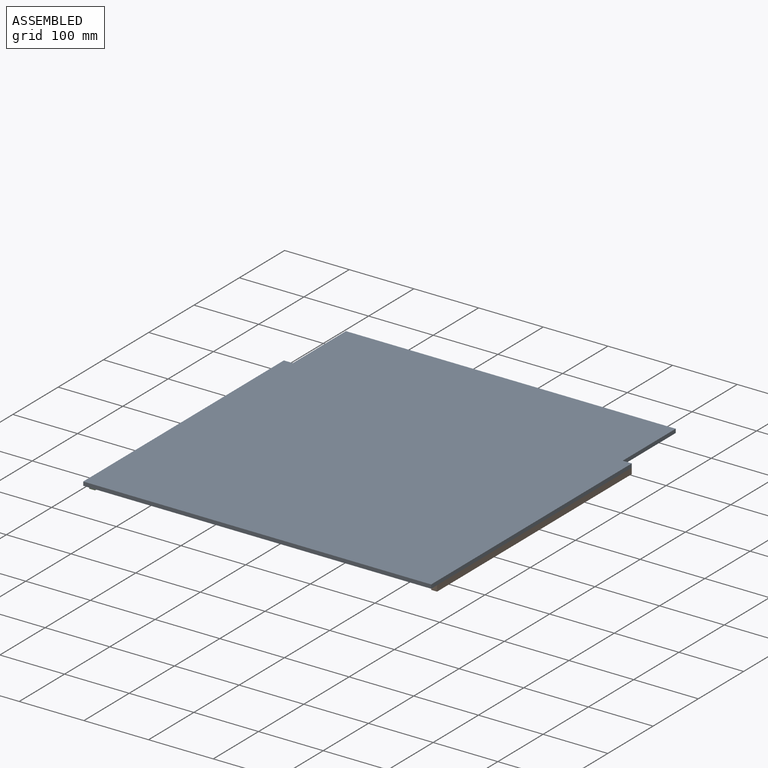
[diagram: assembled view]
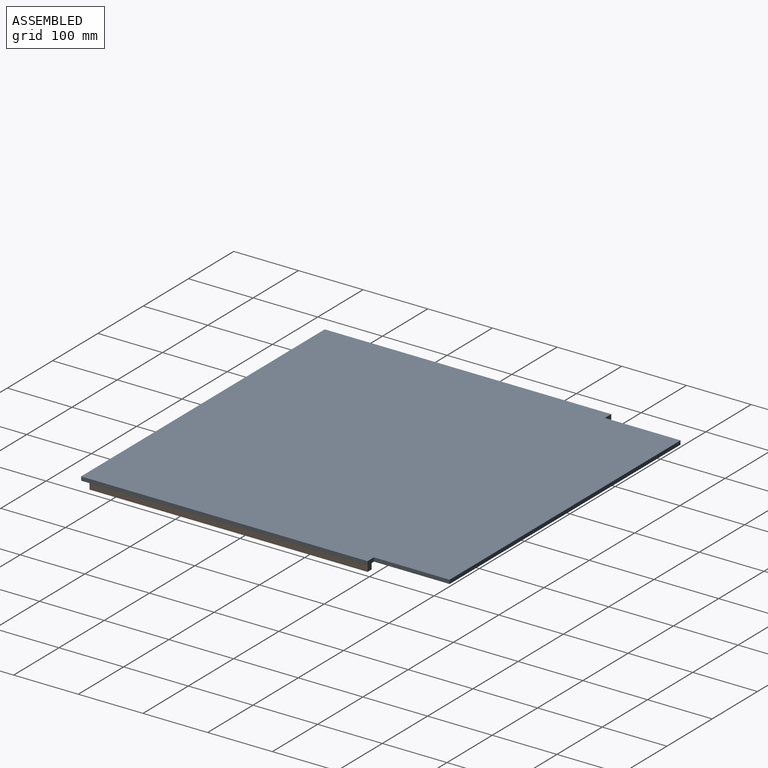
[diagram: assembled view, second angle]
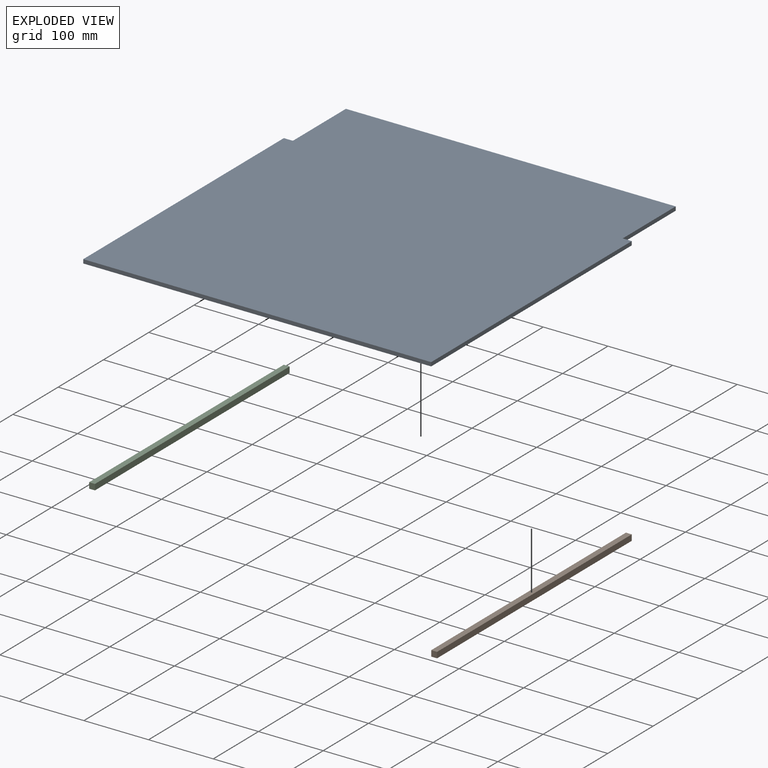
[diagram: exploded view]
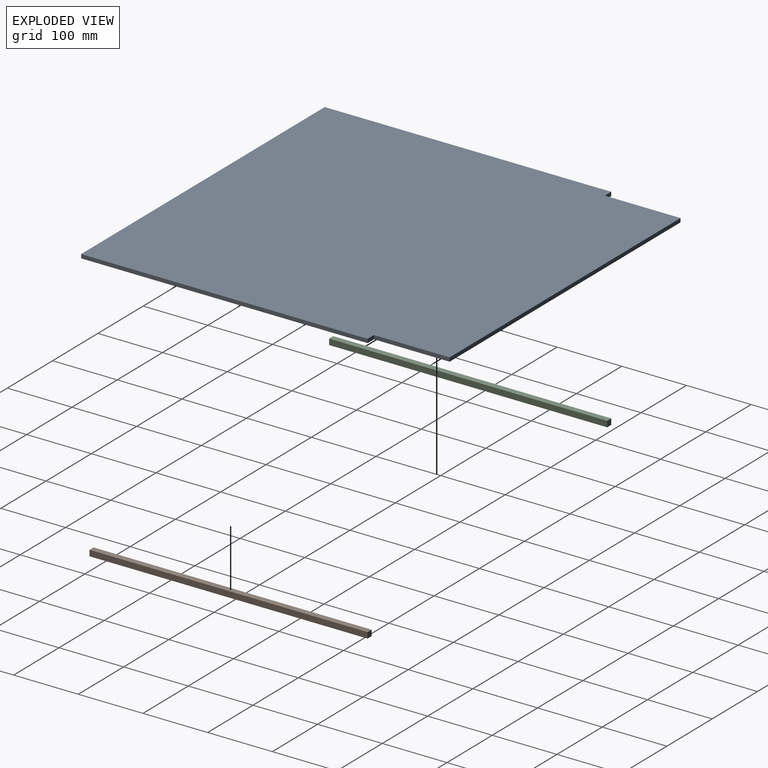
[diagram: exploded view, second angle]
ASSEMBLY  parts=3 mates=2
PART A: 10 faces, bbox 538x560x6 mm
  f0: plane 443x6mm, normal (-1,0,0), area 2658mm2, adj f1,f7,f8,f9
  f1: plane 538x6mm, normal (0,-1,0), area 3228mm2, adj f0,f2,f8,f9
  f2: plane 443x6mm, normal (1,0,0), area 2658mm2, adj f1,f3,f8,f9
  f3: plane 14x6mm, normal (0,1,0), area 84mm2, adj f2,f4,f8,f9
  f4: plane 117x6mm, normal (1,0,0), area 702mm2, adj f3,f5,f8,f9
  f5: plane 510x6mm, normal (0,1,0), area 3060mm2, adj f4,f6,f8,f9
  f6: plane 117x6mm, normal (-1,0,0), area 702mm2, adj f5,f7,f8,f9
  f7: plane 14x6mm, normal (0,1,0), area 84mm2, adj f0,f6,f8,f9
  f8: plane 560x538mm, normal (0,0,1), area 298004mm2, adj f0,f1,f2,f3,f4,f5,f6,f7
  f9: plane 560x538mm, normal (0,0,-1), area 298004mm2, adj f0,f1,f2,f3,f4,f5,f6,f7
PART B: 6 faces, bbox 9x430x9 mm
  f0: plane 430x9mm, normal (-1,0,0), area 3870mm2, adj f1,f3,f4,f5
  f1: plane 430x9mm, normal (0,0,-1), area 3870mm2, adj f0,f2,f4,f5
  f2: plane 430x9mm, normal (1,0,0), area 3870mm2, adj f1,f3,f4,f5
  f3: plane 430x9mm, normal (0,0,1), area 3870mm2, adj f0,f2,f4,f5
  f4: plane 9x9mm, normal (0,1,0), area 81mm2, adj f0,f1,f2,f3
  f5: plane 9x9mm, normal (0,-1,0), area 81mm2, adj f0,f1,f2,f3
PART C: same geometry as B
PLACE A t=(-164.21,-124.07,104.38)mm fixed
PLACE B t=(364.79,-111.07,95.38)mm
PLACE C t=(-164.21,-111.07,95.38)mm
MATE fastened B.f3 <-> A.f9  axis (0,0,1) through (373.79,318.93,104.38)mm
MATE fastened C.f3 <-> A.f9  axis (0,0,1) through (-164.21,318.93,104.38)mm
